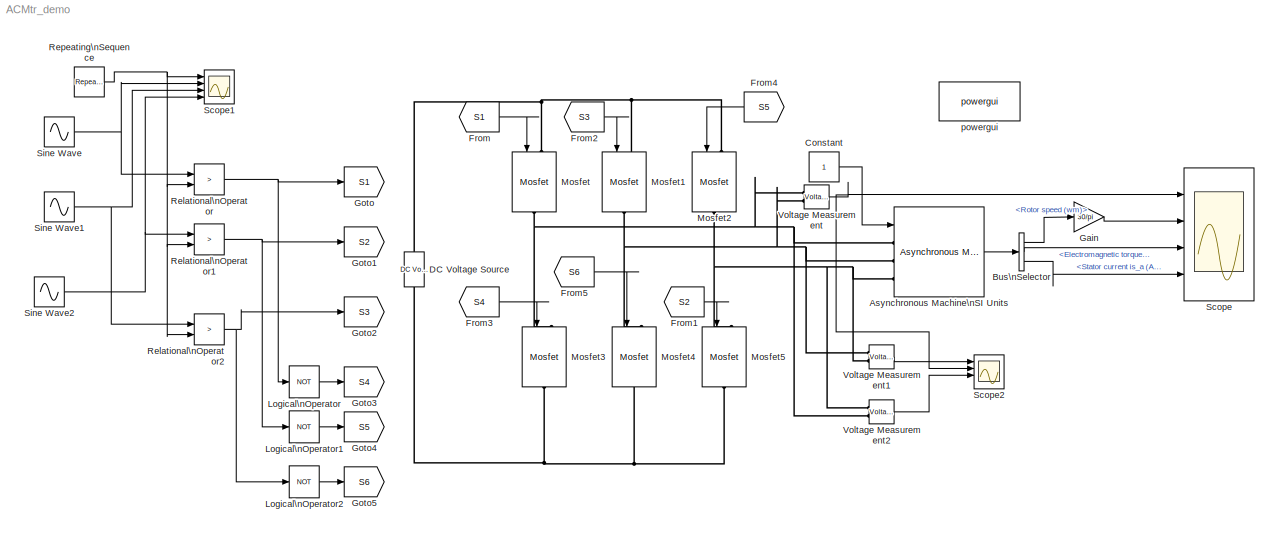
MODEL ACMtr_demo
KIND model
BLOCK [Reference] Asynchronous Machine\nSI Units  REF=powerlib/Machines/Asynchronous Machine\nSI Units
  Cage1 = [0.4155 0.002066]
  Cage2 = [0.4168 0.0003495]
  InitialConditions = [0 0 0 0 0 0 0 0]
  IterativeDiscreteModel = Trapezoidal non iterative
  IterativeModel = Trapezoidal non iterative
  Lm = 0.1722
  LoadFlowParameters = 1492000
  MeasurementBus = off
  Mechanical = [0.0131 0.002985 2]
  MechanicalLoad = Torque Tm
  NominalParameters = [4000 400 50]
  Pmec = 1.492e+006
  PolePairs = 2
  Ports = [1, 1, 0, 0, 0, 3]
  PresetModel = 15:  5.4 HP (4KW)   400 V  50Hz 1430 RPM
  ReferenceFrame = Rotor
  Rotor = [1.395 0.005839]
  RotorType = Squirrel-cage
  SID = 1
  Saturation = [14.03593122, 27.81365428, 53.79336849, 72.68890987, 97.98006896, 148.6815601, 215.7428561, 302.9841135, 428.7778367 ; 230, 322, 414, 460, 506, 552, 598, 644, 690]
  ShowDetailedParameters = on
  SimulateSaturation = off
  SourceBlock = powerlib/Machines/Asynchronous Machine\nSI Units
  SourceProductBaseCode = PS
  SourceProductName = Simscape Electrical
  SourceType = Asynchronous Machine
  Stator = [1.405 0.005839]
  TsBlock = -1
  TsPowergui = 0
  Units = SI
BLOCK [BusSelector] Bus\nSelector
  OutputAsBus = off
  OutputSignals = Mechanical.Rotor speed (wm),Mechanical.Electromagnetic torque Te (N*m),Stator measurements.Stator current is_a (A)
  Ports = [1, 3]
  SID = 28
BLOCK [Constant] Constant
  SID = 26
BLOCK [Reference] DC Voltage Source  REF=powerlib/Electrical\nSources/DC Voltage Source
  Amplitude = 600
  Measurements = None
  Ports = [0, 0, 0, 0, 0, 1, 1]
  SID = 27
  SourceBlock = powerlib/Electrical\nSources/DC Voltage Source
  SourceProductBaseCode = PS
  SourceProductName = Simscape Electrical
  SourceType = DC Voltage Source
BLOCK [From] From
  GotoTag = S1
  SID = 11
BLOCK [From] From1
  GotoTag = S2
  SID = 13
BLOCK [From] From2
  GotoTag = S3
  SID = 16
BLOCK [From] From3
  GotoTag = S4
  SID = 19
BLOCK [From] From4
  GotoTag = S5
  SID = 22
BLOCK [From] From5
  GotoTag = S6
  SID = 25
BLOCK [Gain] Gain
  Gain = 30/pi
  OutDataTypeStr = Inherit: Inherit via internal rule
  ParamDataTypeStr = Inherit: Inherit via internal rule
  SID = 32
  SaturateOnIntegerOverflow = off
BLOCK [Goto] Goto
  GotoTag = S1
  SID = 10
BLOCK [Goto] Goto1
  GotoTag = S2
  SID = 12
BLOCK [Goto] Goto2
  GotoTag = S3
  SID = 15
BLOCK [Goto] Goto3
  GotoTag = S4
  SID = 18
BLOCK [Goto] Goto4
  GotoTag = S5
  SID = 20
BLOCK [Goto] Goto5
  GotoTag = S6
  SID = 23
BLOCK [Logic] Logical\nOperator
  AllPortsSameDT = off
  Operator = NOT
  OutDataTypeStr = boolean
  Ports = [1, 1]
  SID = 39
BLOCK [Logic] Logical\nOperator1
  AllPortsSameDT = off
  Operator = NOT
  OutDataTypeStr = boolean
  Ports = [1, 1]
  SID = 41
BLOCK [Logic] Logical\nOperator2
  AllPortsSameDT = off
  Operator = NOT
  OutDataTypeStr = boolean
  Ports = [1, 1]
  SID = 43
BLOCK [Reference] Mosfet  REF=powerlib/Power\nElectronics/Mosfet
  Cs = inf
  IC = 0
  Lon = 0
  Measurements = off
  Ports = [1, 0, 0, 0, 0, 1, 1]
  Rd = 0.01
  Ron = 0.1
  Rs = 1e5
  SID = 2
  SourceBlock = powerlib/Power\nElectronics/Mosfet
  SourceProductBaseCode = PS
  SourceProductName = Simscape Electrical
  SourceType = Mosfet
  Vfd = 0
BLOCK [Reference] Mosfet1  REF=powerlib/Power\nElectronics/Mosfet
  Cs = inf
  IC = 0
  Lon = 0
  Measurements = off
  Ports = [1, 0, 0, 0, 0, 1, 1]
  Rd = 0.01
  Ron = 0.1
  Rs = 1e5
  SID = 3
  SourceBlock = powerlib/Power\nElectronics/Mosfet
  SourceProductBaseCode = PS
  SourceProductName = Simscape Electrical
  SourceType = Mosfet
  Vfd = 0
BLOCK [Reference] Mosfet2  REF=powerlib/Power\nElectronics/Mosfet
  Cs = inf
  IC = 0
  Lon = 0
  Measurements = off
  Ports = [1, 0, 0, 0, 0, 1, 1]
  Rd = 0.01
  Ron = 0.1
  Rs = 1e5
  SID = 4
  SourceBlock = powerlib/Power\nElectronics/Mosfet
  SourceProductBaseCode = PS
  SourceProductName = Simscape Electrical
  SourceType = Mosfet
  Vfd = 0
BLOCK [Reference] Mosfet3  REF=powerlib/Power\nElectronics/Mosfet
  Cs = inf
  IC = 0
  Lon = 0
  Measurements = off
  Ports = [1, 0, 0, 0, 0, 1, 1]
  Rd = 0.01
  Ron = 0.1
  Rs = 1e5
  SID = 5
  SourceBlock = powerlib/Power\nElectronics/Mosfet
  SourceProductBaseCode = PS
  SourceProductName = Simscape Electrical
  SourceType = Mosfet
  Vfd = 0
BLOCK [Reference] Mosfet4  REF=powerlib/Power\nElectronics/Mosfet
  Cs = inf
  IC = 0
  Lon = 0
  Measurements = off
  Ports = [1, 0, 0, 0, 0, 1, 1]
  Rd = 0.01
  Ron = 0.1
  Rs = 1e5
  SID = 6
  SourceBlock = powerlib/Power\nElectronics/Mosfet
  SourceProductBaseCode = PS
  SourceProductName = Simscape Electrical
  SourceType = Mosfet
  Vfd = 0
BLOCK [Reference] Mosfet5  REF=powerlib/Power\nElectronics/Mosfet
  Cs = inf
  IC = 0
  Lon = 0
  Measurements = off
  Ports = [1, 0, 0, 0, 0, 1, 1]
  Rd = 0.01
  Ron = 0.1
  Rs = 1e5
  SID = 7
  SourceBlock = powerlib/Power\nElectronics/Mosfet
  SourceProductBaseCode = PS
  SourceProductName = Simscape Electrical
  SourceType = Mosfet
  Vfd = 0
BLOCK [RelationalOperator] Relational\nOperator
  InputSameDT = off
  Operator = >
  OutDataTypeStr = boolean
  Ports = [2, 1]
  SID = 38
BLOCK [RelationalOperator] Relational\nOperator1
  InputSameDT = off
  Operator = >
  OutDataTypeStr = boolean
  Ports = [2, 1]
  SID = 40
BLOCK [RelationalOperator] Relational\nOperator2
  InputSameDT = off
  Operator = >
  OutDataTypeStr = boolean
  Ports = [2, 1]
  SID = 42
BLOCK [Reference] Repeating\nSequence  REF=simulink/Sources/Repeating\nSequence
  Ports = [0, 1]
  SID = 33
  SourceBlock = simulink/Sources/Repeating\nSequence
  SourceProductBaseCode = SL
  SourceProductName = Simulink
  SourceType = Repeating table
  rep_seq_t = [0 0.25 0.5 0.75 1]/5000
  rep_seq_y = [0 1 0 -1 0]
BLOCK [Scope] Scope
  Floating = off
  NumInputPorts = 4
  Ports = [4]
  SID = 30
  ScopeSpecificationString = Simulink.scopes.TimeScopeBlockCfg('CurrentConfiguration', extmgr.ConfigurationSet(extmgr.Configuration('Core','General UI',true,'FigureColor',[1 1 1]),extmgr.Configuration('Core','Source UI',true),extmgr.Configuration('Sources','WiredSimulink',true,'DataLoggingSaveFormat','StructureWithTime','DataLoggingDecimation','1','DataLoggingDecimateData',true),extmgr.Configuration('Visuals','Time Domain',tr...<+6561ch>
BLOCK [Scope] Scope1
  Floating = off
  NumInputPorts = 4
  Ports = [4]
  SID = 34
  ScopeSpecificationString = Simulink.scopes.TimeScopeBlockCfg('CurrentConfiguration', extmgr.ConfigurationSet(extmgr.Configuration('Core','General UI',true,'FigureColor',[0.156862745098039 0.156862745098039 0.156862745098039]),extmgr.Configuration('Core','Source UI',true),extmgr.Configuration('Sources','WiredSimulink',true,'DataLoggingVariableName','ScopeData1','DataLoggingSaveFormat','StructureWithTime','DataLoggingDecimati...<+6481ch>
BLOCK [Scope] Scope2
  Floating = off
  NumInputPorts = 4
  Ports = [4]
  SID = 46
  ScopeSpecificationString = Simulink.scopes.TimeScopeBlockCfg('CurrentConfiguration', extmgr.ConfigurationSet(extmgr.Configuration('Core','General UI',true,'FigureColor',[0.156862745098039 0.156862745098039 0.156862745098039]),extmgr.Configuration('Core','Source UI',true),extmgr.Configuration('Sources','WiredSimulink',true,'DataLoggingVariableName','ScopeData2','DataLoggingSaveFormat','StructureWithTime','DataLoggingDecimati...<+6502ch>
BLOCK [Sin] Sine Wave
  Amplitude = 0.6
  Frequency = 2*pi*50
  Ports = [0, 1]
  SID = 35
  SampleTime = 0
BLOCK [Sin] Sine Wave1
  Amplitude = 0.6
  Frequency = 2*pi*50
  Phase = 120*pi/180
  Ports = [0, 1]
  SID = 36
  SampleTime = 0
BLOCK [Sin] Sine Wave2
  Amplitude = 0.6
  Frequency = 2*pi*50
  Phase = 240*pi/180
  Ports = [0, 1]
  SID = 37
  SampleTime = 0
BLOCK [Reference] Voltage Measurement  REF=powerlib/Measurements/Voltage Measurement
  OutputType = Complex
  PSBequivalent = 0
  PhasorSimulation = off
  Ports = [0, 1, 0, 0, 0, 2]
  SID = 29
  SourceBlock = powerlib/Measurements/Voltage Measurement
  SourceProductBaseCode = PS
  SourceProductName = Simscape Electrical
  SourceType = Voltage Measurement
  UserDataPersistent = on
BLOCK [Reference] Voltage Measurement1  REF=powerlib/Measurements/Voltage Measurement
  OutputType = Complex
  PSBequivalent = 0
  PhasorSimulation = off
  Ports = [0, 1, 0, 0, 0, 2]
  SID = 44
  SourceBlock = powerlib/Measurements/Voltage Measurement
  SourceProductBaseCode = PS
  SourceProductName = Simscape Electrical
  SourceType = Voltage Measurement
  UserDataPersistent = on
BLOCK [Reference] Voltage Measurement2  REF=powerlib/Measurements/Voltage Measurement
  OutputType = Complex
  PSBequivalent = 0
  PhasorSimulation = off
  Ports = [0, 1, 0, 0, 0, 2]
  SID = 45
  SourceBlock = powerlib/Measurements/Voltage Measurement
  SourceProductBaseCode = PS
  SourceProductName = Simscape Electrical
  SourceType = Voltage Measurement
  UserDataPersistent = on
BLOCK [Reference] powergui  REF=powerlib/powergui
  AutomaticDiscreteSolvers = off
  ContinueOnMaxIteration = off
  CurrentSourceSwitches = off
  DisableRonSwitches = off
  DisableSnubberDevices = off
  DisableVfSwitches = off
  DisplayEquations = off
  DisplayStyle = 1
  EnableUseOfTLC = off
  ErrMax = 1e-4
  ExternalGateDelay = off
  Frange = [0:2:500]
  FreqAxis = off
  FunctionMessages = off
  HookPort = off
  Interpol = off
  Iterations = 50
  MaxFrequency = 1000
  NonlinearTolerance = 1e-4
  Pbase = 100e6
  Ports = []
  Priority = 1
  ResistiveCurrentMeasurement = off
  RestoreLinks = warning
  RmsSteady = 1
  SID = 31
  SPID = on
  SampleTime = 50e-6
  ShowGrid = off
  SolverType = Tustin/Backward Euler (TBE)
  SourceBlock = powerlib/powergui
  SourceProductBaseCode = PS
  SourceProductName = Simscape Electrical
  SourceType = PSB option menu block
  StartTime = 0.0
  SwTol = 0
  Ts = 100
  UnitsV = kV
  UnitsW = MW
  Xlog = on
  Ylog = off
  ZoomFFT = off
  buscounter = 0
  cycles = 1
  display = off
  echomessages = off
  frequency = 60
  frequencyindice = 50
  frequencyindicesteady = 1
  fundamental = 60
  methode = off
  nMaxIteration = 100
  save = off
  structure = 0
  variable = ZData
  x0status = blocks
LINE Asynchronous Machine\nSI Units:1 -> Bus\nSelector:1
LINE Bus\nSelector:1 -> Gain:1
LINE Bus\nSelector:2 -> Scope:3
LINE Bus\nSelector:3 -> Scope:4
LINE Constant:1 -> Asynchronous Machine\nSI Units:1
LINE From1:1 -> Mosfet5:1
LINE From2:1 -> Mosfet1:1
LINE From3:1 -> Mosfet3:1
LINE From4:1 -> Mosfet2:1
LINE From5:1 -> Mosfet4:1
LINE From:1 -> Mosfet:1
LINE Gain:1 -> Scope:2
LINE Logical\nOperator1:1 -> Goto4:1
LINE Logical\nOperator2:1 -> Goto5:1
LINE Logical\nOperator:1 -> Goto3:1
NET Relational\nOperator1:1 -> Goto1:1, Logical\nOperator1:1
NET Relational\nOperator2:1 -> Goto2:1, Logical\nOperator2:1
NET Relational\nOperator:1 -> Goto:1, Logical\nOperator:1
NET Repeating\nSequence:1 -> Relational\nOperator1:2, Relational\nOperator2:2, Relational\nOperator:2, Scope1:1
NET Sine Wave1:1 -> Relational\nOperator2:1, Scope1:3
NET Sine Wave2:1 -> Relational\nOperator1:1, Scope1:4
NET Sine Wave:1 -> Relational\nOperator:1, Scope1:2
LINE Voltage Measurement1:1 -> Scope2:1
LINE Voltage Measurement2:1 -> Scope2:3
NET Voltage Measurement:1 -> Scope2:2, Scope:1
PNET net1: Asynchronous Machine\nSI Units:LConn1 -- Mosfet3:LConn1 -- Mosfet:RConn1 -- Voltage Measurement2:LConn2 -- Voltage Measurement:LConn1
PNET net2: Asynchronous Machine\nSI Units:LConn2 -- Mosfet1:RConn1 -- Mosfet4:LConn1 -- Voltage Measurement1:LConn1 -- Voltage Measurement:LConn2
PNET net3: Asynchronous Machine\nSI Units:LConn3 -- Mosfet2:RConn1 -- Mosfet5:LConn1 -- Voltage Measurement1:LConn2 -- Voltage Measurement2:LConn1
PNET net4: DC Voltage Source:LConn1 -- Mosfet3:RConn1 -- Mosfet4:RConn1 -- Mosfet5:RConn1
PNET net5: DC Voltage Source:RConn1 -- Mosfet1:LConn1 -- Mosfet2:LConn1 -- Mosfet:LConn1
note: NET lines group one-source signal fan-out (src -> all destinations, sorted); 1:1 wires keep LINE; PNET lines group multi-terminal physical nets as a canonical sorted terminal list (undirected conserving connections); 2-terminal nets keep the pairwise PLINE form
